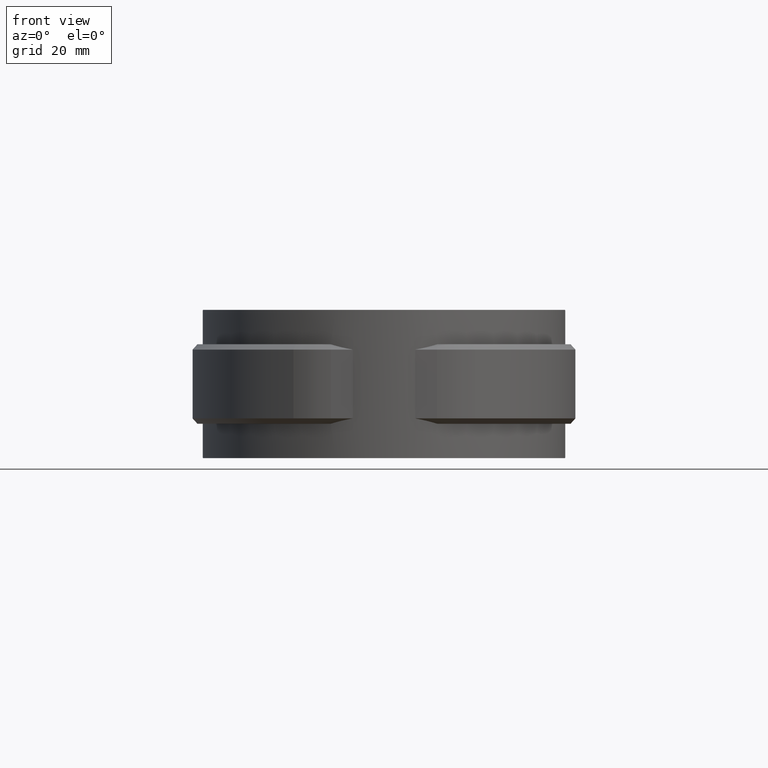
[diagram: clean part render]
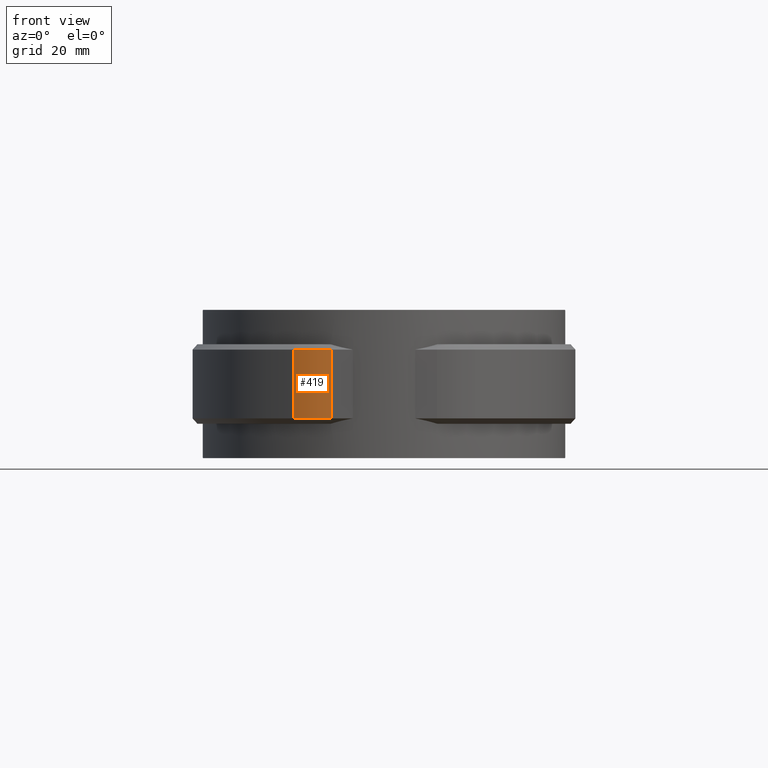
[diagram: same view with one face highlighted and labeled with its STEP entity id]
A machine part, front view. The second image highlights one B-rep face of the part: STEP entity #419.
In plain terms, the highlighted cylindrical surface (partial cylindrical patch) has radius 15 mm, axis along (0, 0, 1).
Its self-contained STEP definition (entity closure, byte-faithful):
#419 = ADVANCED_FACE( '', ( #845 ), #846, .T. );
#845 = FACE_OUTER_BOUND( '', #1871, .T. );
#846 = CYLINDRICAL_SURFACE( '', #1872, 15.0000000000000 );
#1871 = EDGE_LOOP( '', ( #4062, #4063, #4064, #4065 ) );
#1872 = AXIS2_PLACEMENT_3D( '', #4066, #4067, #4068 );
#4062 = ORIENTED_EDGE( '', *, *, #7199, .F. );
#4063 = ORIENTED_EDGE( '', *, *, #7200, .T. );
#4064 = ORIENTED_EDGE( '', *, *, #7201, .T. );
#4065 = ORIENTED_EDGE( '', *, *, #7196, .T. );
#4066 = CARTESIAN_POINT( '', ( -10.0156042753296, -18.7360000000000, -20.0000000000000 ) );
#4067 = DIRECTION( '', ( 0.000000000000000, 0.000000000000000, 1.00000000000000 ) );
#4068 = DIRECTION( '', ( 0.171773235086843, 0.985136516279749, 0.000000000000000 ) );
#7196 = EDGE_CURVE( '', #8235, #8241, #8243, .T. );
#7199 = EDGE_CURVE( '', #8247, #8241, #8248, .T. );
#7200 = EDGE_CURVE( '', #8247, #8249, #8250, .T. );
#7201 = EDGE_CURVE( '', #8249, #8235, #8251, .T. );
#8235 = VERTEX_POINT( '', #10797 );
#8241 = VERTEX_POINT( '', #10805 );
#8243 = CIRCLE( '', #10808, 15.0000000000000 );
#8247 = VERTEX_POINT( '', #10816 );
#8248 = LINE( '', #10817, #10818 );
#8249 = VERTEX_POINT( '', #10819 );
#8250 = CIRCLE( '', #10820, 15.0000000000000 );
#8251 = LINE( '', #10821, #10822 );
#10797 = CARTESIAN_POINT( '', ( -10.0156042753296, -33.7360000000000, -6.00000000000000 ) );
#10805 = CARTESIAN_POINT( '', ( -17.0871064701963, -31.9645243586726, -6.00000000000000 ) );
#10808 = AXIS2_PLACEMENT_3D( '', #13813, #13814, #13815 );
#10816 = CARTESIAN_POINT( '', ( -17.0871064701963, -31.9645243586726, -19.0000000000000 ) );
#10817 = CARTESIAN_POINT( '', ( -17.0871064701963, -31.9645243586726, -20.0000000000000 ) );
#10818 = VECTOR( '', #13819, 1000.00000000000 );
#10819 = CARTESIAN_POINT( '', ( -10.0156042753296, -33.7360000000000, -19.0000000000000 ) );
#10820 = AXIS2_PLACEMENT_3D( '', #13820, #13821, #13822 );
#10821 = CARTESIAN_POINT( '', ( -10.0156042753296, -33.7360000000000, -20.0000000000000 ) );
#10822 = VECTOR( '', #13823, 1000.00000000000 );
#13813 = CARTESIAN_POINT( '', ( -10.0156042753296, -18.7360000000000, -6.00000000000000 ) );
#13814 = DIRECTION( '', ( 0.000000000000000, 0.000000000000000, -1.00000000000000 ) );
#13815 = DIRECTION( '', ( -1.00000000000000, 0.000000000000000, 0.000000000000000 ) );
#13819 = DIRECTION( '', ( 0.000000000000000, 0.000000000000000, 1.00000000000000 ) );
#13820 = CARTESIAN_POINT( '', ( -10.0156042753296, -18.7360000000000, -19.0000000000000 ) );
#13821 = DIRECTION( '', ( 0.000000000000000, 0.000000000000000, 1.00000000000000 ) );
#13822 = DIRECTION( '', ( 1.00000000000000, 0.000000000000000, 0.000000000000000 ) );
#13823 = DIRECTION( '', ( 0.000000000000000, 0.000000000000000, 1.00000000000000 ) );